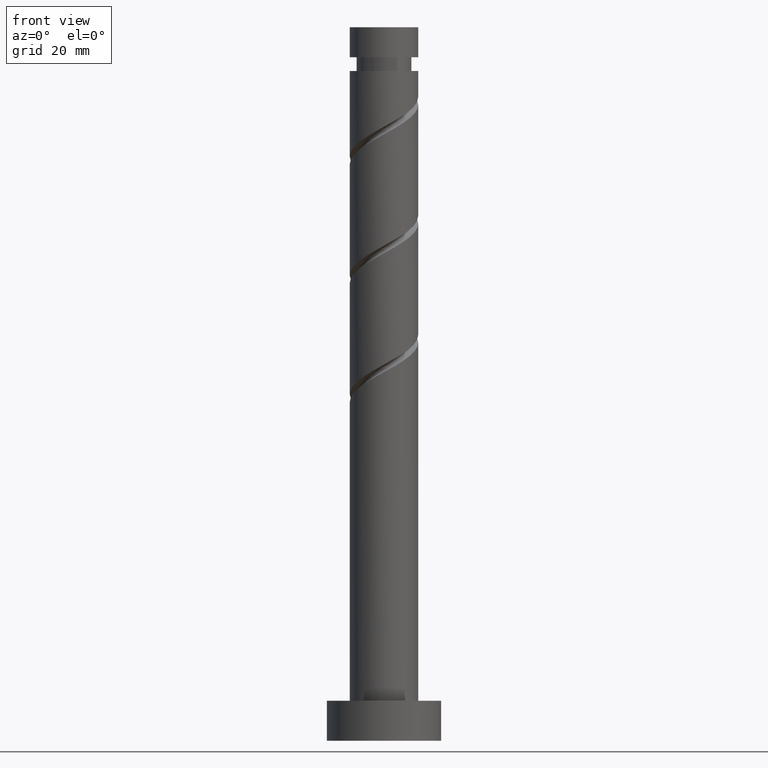
[diagram: clean part render]
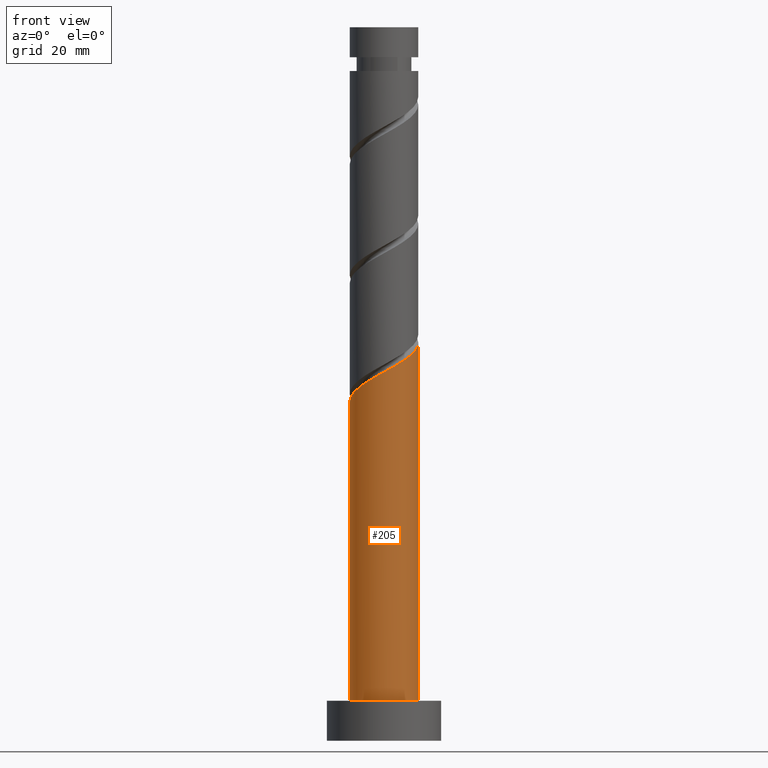
[diagram: same view with one face highlighted and labeled with its STEP entity id]
A machine part, front view. The second image highlights one B-rep face of the part: STEP entity #205.
In plain terms, the highlighted cylindrical surface (edge-blend (fillet) strip) has radius 6 mm, axis along (-0, -0, -1).
Its self-contained STEP definition (entity closure, byte-faithful):
#68 = AXIS2_PLACEMENT_3D ( 'NONE', #503, #987, #1137 ) ;
#84 = CARTESIAN_POINT ( 'NONE',  ( -5.880000000000010552, -1.193984924527944358, 60.04032889017774011 ) ) ;
#99 = ORIENTED_EDGE ( 'NONE', *, *, #1574, .T. ) ;
#161 = VERTEX_POINT ( 'NONE', #600 ) ;
#205 = ADVANCED_FACE ( 'NONE', ( #1490 ), #1572, .T. ) ;
#330 = CARTESIAN_POINT ( 'NONE',  ( -6.000000000000009770, -4.827779096192253501E-15, 59.37552644870746832 ) ) ;
#369 = CARTESIAN_POINT ( 'NONE',  ( 0.2626844154196687486, -6.069108634027301719, 64.72782889017771879 ) ) ;
#387 = DIRECTION ( 'NONE',  ( -0.000000000000000000, -0.000000000000000000, -1.000000000000000000 ) ) ;
#390 = CARTESIAN_POINT ( 'NONE',  ( 2.952567069755172469, -5.223250683108889625, 66.29032889017774721 ) ) ;
#392 = VERTEX_POINT ( 'NONE', #1266 ) ;
#404 = CARTESIAN_POINT ( 'NONE',  ( 6.000000000000009770, 4.018151545899142617E-15, 69.79219311537414683 ) ) ;
#412 = CARTESIAN_POINT ( 'NONE',  ( 2.125285433636218357, -5.690891365972717608, 65.76949555684440440 ) ) ;
#503 = CARTESIAN_POINT ( 'NONE',  ( 0.000000000000000000, 0.000000000000000000, 125.0000000000000000 ) ) ;
#511 = CARTESIAN_POINT ( 'NONE',  ( 6.000000000000000888, 7.347880794884120722E-16, 125.0000000000000000 ) ) ;
#541 = CARTESIAN_POINT ( 'NONE',  ( 5.853239263016972060, -1.625629983608100293, 68.89449555684441862 ) ) ;
#555 = CARTESIAN_POINT ( 'NONE',  ( -5.690891365972717608, -2.125285433636218801, 60.56116222351106160 ) ) ;
#575 = CARTESIAN_POINT ( 'NONE',  ( -5.223250683108889625, -2.952567069755172913, 61.08199555684440440 ) ) ;
#578 =( BOUNDED_CURVE ( )  B_SPLINE_CURVE ( 2, ( #330, #837, #84, #555, #575, #1078, #955, #1437, #1216, #1208, #1117, #369, #588, #412, #390, #1492, #655, #1147, #1026, #541, #921, #1499, #404 ),
 .UNSPECIFIED., .F., .T. ) 
 B_SPLINE_CURVE_WITH_KNOTS ( ( 3, 2, 2, 2, 2, 2, 2, 2, 2, 2, 2, 3 ),
 ( 0.05453220231385522837, 0.06250000000000000000, 0.07499999999999995559, 0.08750000000000002220, 0.09999999999999997780, 0.1125000000000000444, 0.1250000000000000000, 0.1374999999999999556, 0.1500000000000000222, 0.1624999999999999778, 0.1750000000000000444, 0.1795322023138552214 ),
 .UNSPECIFIED. ) 
 CURVE ( )  GEOMETRIC_REPRESENTATION_ITEM ( )  RATIONAL_B_SPLINE_CURVE ( ( 0.9039174447099380671, 0.9019565955404673652, 0.9090909090909156109, 0.8978984914501316750, 0.9090909090909156109, 0.8978984914501316750, 0.9090909090909156109, 0.8978984914501316750, 0.9090909090909156109, 0.8978984914501316750, 0.9090909090909156109, 0.8978984914501316750, 0.9090909090909156109, 0.8978984914501316750, 0.9090909090909156109, 0.8978984914501316750, 0.9090909090909156109, 0.8978984914501316750, 0.9090909090909156109, 0.8978984914501316750, 0.9090909090909156109, 0.9050328050005800318, 0.9039174447099378451 ) ) 
 REPRESENTATION_ITEM ( '' )  );
#588 = CARTESIAN_POINT ( 'NONE',  ( 1.193984924527944136, -5.880000000000010552, 65.24866222351106160 ) ) ;
#600 = CARTESIAN_POINT ( 'NONE',  ( 6.000000000000000888, 7.347880794884120722E-16, 7.000000000000000000 ) ) ;
#603 = CARTESIAN_POINT ( 'NONE',  ( 0.000000000000000000, 0.000000000000000000, 7.000000000000000000 ) ) ;
#655 = CARTESIAN_POINT ( 'NONE',  ( 4.422131378450343320, -4.055213196827631705, 67.33199555684439019 ) ) ;
#773 = LINE ( 'NONE', #1488, #1103 ) ;
#837 = CARTESIAN_POINT ( 'NONE',  ( -6.000000000000009770, -0.6030226891555281465, 59.70983102411530297 ) ) ;
#857 = EDGE_LOOP ( 'NONE', ( #1167, #984, #1562, #99 ) ) ;
#884 = DIRECTION ( 'NONE',  ( 0.000000000000000000, 0.000000000000000000, 1.000000000000000000 ) ) ;
#921 = CARTESIAN_POINT ( 'NONE',  ( 5.961173948522136889, -0.6814727840942159665, 69.41532889017773300 ) ) ;
#946 = CARTESIAN_POINT ( 'NONE',  ( 6.000000000000009770, 4.018151545899142617E-15, 69.79219311537414683 ) ) ;
#954 = EDGE_CURVE ( 'NONE', #1132, #161, #1287, .T. ) ;
#955 = CARTESIAN_POINT ( 'NONE',  ( -4.055213196827631705, -4.422131378450343320, 62.12366222351107581 ) ) ;
#984 = ORIENTED_EDGE ( 'NONE', *, *, #1150, .F. ) ;
#987 = DIRECTION ( 'NONE',  ( -0.000000000000000000, -0.000000000000000000, -1.000000000000000000 ) ) ;
#1017 = DIRECTION ( 'NONE',  ( -0.000000000000000000, -0.000000000000000000, -1.000000000000000000 ) ) ;
#1026 = CARTESIAN_POINT ( 'NONE',  ( 5.458826657021765172, -2.490223188509153029, 68.37366222351109002 ) ) ;
#1032 = AXIS2_PLACEMENT_3D ( 'NONE', #603, #884, #1467 ) ;
#1043 = CARTESIAN_POINT ( 'NONE',  ( -6.000000000000009770, -4.827779096192253501E-15, 59.37552644870746832 ) ) ;
#1062 = VECTOR ( 'NONE', #1017, 1000.000000000000000 ) ;
#1078 = CARTESIAN_POINT ( 'NONE',  ( -4.755610000245058977, -3.779848705874125248, 61.60282889017773300 ) ) ;
#1103 = VECTOR ( 'NONE', #387, 1000.000000000000000 ) ;
#1117 = CARTESIAN_POINT ( 'NONE',  ( -0.6814727840942155224, -5.961173948522136889, 64.20699555684440440 ) ) ;
#1132 = VERTEX_POINT ( 'NONE', #946 ) ;
#1137 = DIRECTION ( 'NONE',  ( -1.000000000000000000, 0.000000000000000000, 0.000000000000000000 ) ) ;
#1147 = CARTESIAN_POINT ( 'NONE',  ( 5.064414051026561836, -3.354816393410203990, 67.85282889017774721 ) ) ;
#1150 = EDGE_CURVE ( 'NONE', #1365, #1132, #578, .T. ) ;
#1167 = ORIENTED_EDGE ( 'NONE', *, *, #954, .F. ) ;
#1208 = CARTESIAN_POINT ( 'NONE',  ( -1.625629983608100293, -5.853239263016972060, 63.68616222351105449 ) ) ;
#1216 = CARTESIAN_POINT ( 'NONE',  ( -2.490223188509153029, -5.458826657021765172, 63.16532889017773300 ) ) ;
#1264 = EDGE_CURVE ( 'NONE', #1365, #392, #773, .T. ) ;
#1266 = CARTESIAN_POINT ( 'NONE',  ( -6.000000000000000888, 0.000000000000000000, 7.000000000000000000 ) ) ;
#1287 = LINE ( 'NONE', #511, #1062 ) ;
#1365 = VERTEX_POINT ( 'NONE', #1043 ) ;
#1372 = CIRCLE ( 'NONE', #1032, 6.000000000000000888 ) ;
#1437 = CARTESIAN_POINT ( 'NONE',  ( -3.354816393410203990, -5.064414051026561836, 62.64449555684439730 ) ) ;
#1467 = DIRECTION ( 'NONE',  ( 1.000000000000000000, 0.000000000000000000, 0.000000000000000000 ) ) ;
#1488 = CARTESIAN_POINT ( 'NONE',  ( -6.000000000000000888, 0.000000000000000000, 125.0000000000000000 ) ) ;
#1490 = FACE_OUTER_BOUND ( 'NONE', #857, .T. ) ;
#1492 = CARTESIAN_POINT ( 'NONE',  ( 3.779848705874125248, -4.755610000245058977, 66.81116222351104739 ) ) ;
#1499 = CARTESIAN_POINT ( 'NONE',  ( 6.000000000000008882, -0.3418424246785990994, 69.60268202616684619 ) ) ;
#1562 = ORIENTED_EDGE ( 'NONE', *, *, #1264, .T. ) ;
#1572 = CYLINDRICAL_SURFACE ( 'NONE', #68, 6.000000000000000888 ) ;
#1574 = EDGE_CURVE ( 'NONE', #392, #161, #1372, .T. ) ;